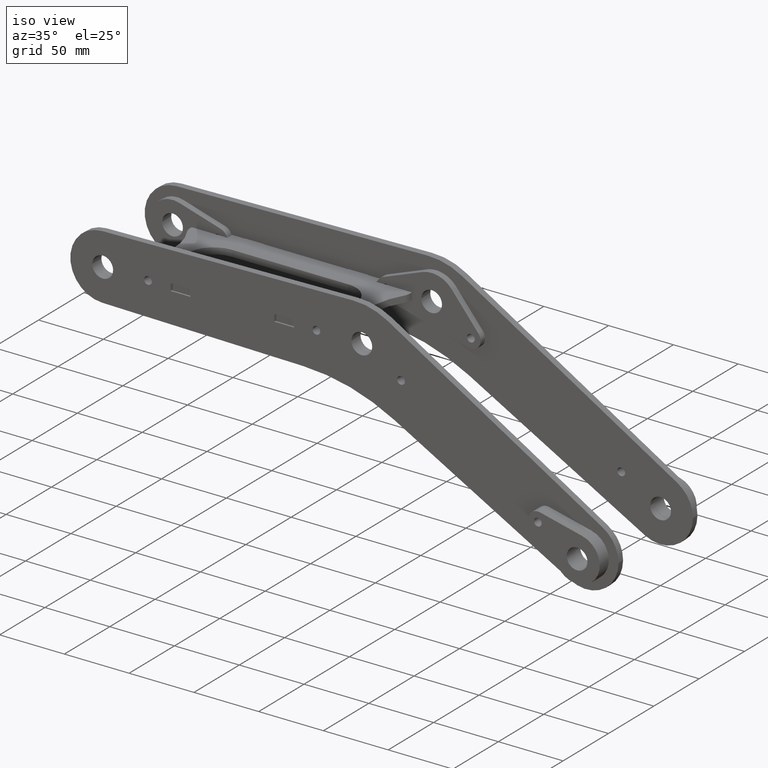
[diagram: clean part render]
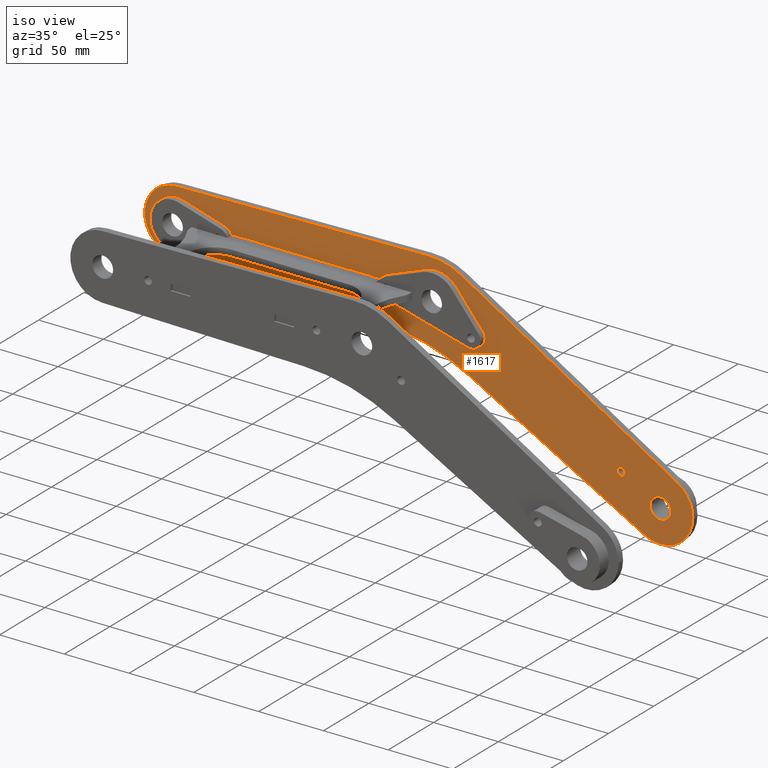
[diagram: same view with one face highlighted and labeled with its STEP entity id]
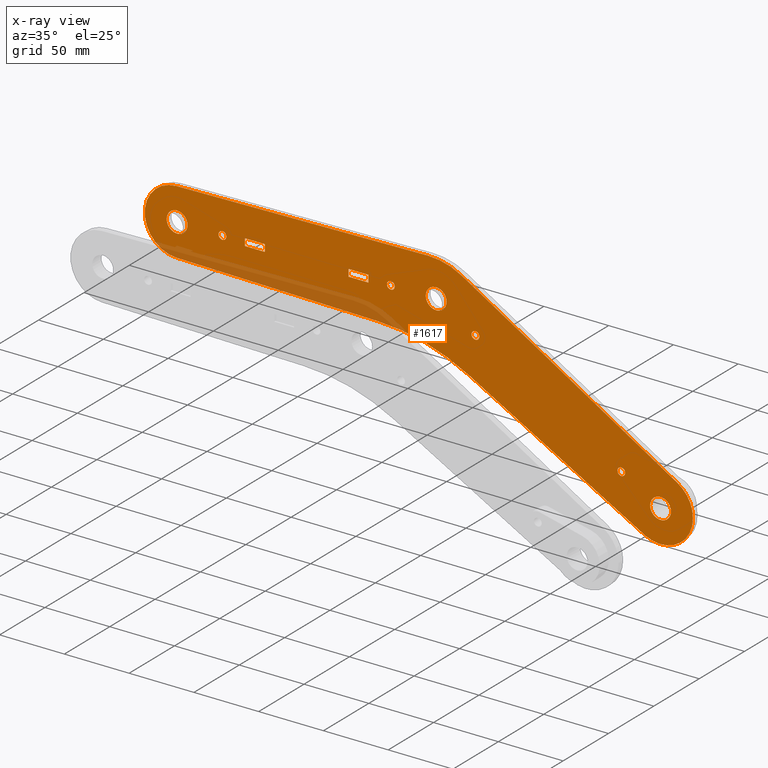
[diagram: x-ray of the same camera — body ghosted, the highlighted face saturated]
A machine part, iso view. The second image highlights one B-rep face of the part: STEP entity #1617.
The next image is the same camera in x-ray: the body ghosted, the highlighted face saturated — about 8% of this face is hidden behind the body in this view.
In plain terms, the highlighted planar face has unit normal (0, -1, 0).
Its self-contained STEP definition (entity closure, byte-faithful):
#1 = DIRECTION ( 'NONE',  ( 0.000000000000000000, 0.000000000000000000, 1.000000000000000000 ) ) ;
#11 = DIRECTION ( 'NONE',  ( 1.000000000000000000, 0.000000000000000000, 0.000000000000000000 ) ) ;
#35 = CIRCLE ( 'NONE', #877, 8.050000000000000711 ) ;
#48 = DIRECTION ( 'NONE',  ( 1.110223024625156540E-16, -1.000000000000000000, -0.000000000000000000 ) ) ;
#53 = EDGE_CURVE ( 'NONE', #1049, #2383, #317, .T. ) ;
#54 = VERTEX_POINT ( 'NONE', #751 ) ;
#102 = DIRECTION ( 'NONE',  ( 0.000000000000000000, 0.000000000000000000, 1.000000000000000000 ) ) ;
#103 = CIRCLE ( 'NONE', #2588, 3.000000000000002665 ) ;
#117 = EDGE_CURVE ( 'NONE', #894, #213, #4061, .T. ) ;
#143 = EDGE_CURVE ( 'NONE', #1189, #1427, #595, .T. ) ;
#151 = EDGE_CURVE ( 'NONE', #449, #4328, #2662, .T. ) ;
#160 = ORIENTED_EDGE ( 'NONE', *, *, #3785, .T. ) ;
#161 = CARTESIAN_POINT ( 'NONE',  ( -67.70000000000001705, -2.699999999999973088, 0.000000000000000000 ) ) ;
#211 = VERTEX_POINT ( 'NONE', #2840 ) ;
#213 = VERTEX_POINT ( 'NONE', #3483 ) ;
#214 = CARTESIAN_POINT ( 'NONE',  ( 8.050000000000000711, 0.000000000000000000, 0.000000000000000000 ) ) ;
#218 = CARTESIAN_POINT ( 'NONE',  ( 27.31088913245535110, -17.50000000000000000, 0.000000000000000000 ) ) ;
#240 = DIRECTION ( 'NONE',  ( -0.000000000000000000, -0.000000000000000000, -1.000000000000000000 ) ) ;
#249 = ORIENTED_EDGE ( 'NONE', *, *, #4070, .F. ) ;
#252 = ORIENTED_EDGE ( 'NONE', *, *, #955, .F. ) ;
#290 = ORIENTED_EDGE ( 'NONE', *, *, #606, .F. ) ;
#302 = DIRECTION ( 'NONE',  ( 0.000000000000000000, 0.000000000000000000, 1.000000000000000000 ) ) ;
#305 = DIRECTION ( 'NONE',  ( 0.000000000000000000, 0.000000000000000000, 1.000000000000000000 ) ) ;
#310 = CARTESIAN_POINT ( 'NONE',  ( -162.0000000000000000, 0.000000000000000000, 0.000000000000000000 ) ) ;
#311 = FACE_BOUND ( 'NONE', #4123, .T. ) ;
#317 = CIRCLE ( 'NONE', #2384, 3.000000000000002665 ) ;
#325 = LINE ( 'NONE', #3760, #1659 ) ;
#338 = DIRECTION ( 'NONE',  ( 0.000000000000000000, 0.000000000000000000, 1.000000000000000000 ) ) ;
#368 = EDGE_CURVE ( 'NONE', #4129, #421, #4327, .T. ) ;
#375 = CIRCLE ( 'NONE', #2932, 24.99999999999999289 ) ;
#421 = VERTEX_POINT ( 'NONE', #3299 ) ;
#449 = VERTEX_POINT ( 'NONE', #1527 ) ;
#457 = LINE ( 'NONE', #3888, #1303 ) ;
#487 = CARTESIAN_POINT ( 'NONE',  ( 186.0810326296388553, -78.57081748244732466, 0.000000000000000000 ) ) ;
#491 = VERTEX_POINT ( 'NONE', #214 ) ;
#497 = ORIENTED_EDGE ( 'NONE', *, *, #1237, .T. ) ;
#513 = CIRCLE ( 'NONE', #3502, 49.99999999999998579 ) ;
#595 = CIRCLE ( 'NONE', #4157, 8.050000000000000711 ) ;
#606 = EDGE_CURVE ( 'NONE', #4328, #449, #4232, .T. ) ;
#621 = DIRECTION ( 'NONE',  ( 1.000000000000000000, 0.000000000000000000, 0.000000000000000000 ) ) ;
#636 = LINE ( 'NONE', #3713, #2873 ) ;
#660 = CIRCLE ( 'NONE', #3855, 8.050000000000000711 ) ;
#668 = EDGE_CURVE ( 'NONE', #3238, #2676, #2439, .T. ) ;
#686 = DIRECTION ( 'NONE',  ( 1.000000000000000000, 0.000000000000000000, 0.000000000000000000 ) ) ;
#692 = CARTESIAN_POINT ( 'NONE',  ( 0.000000000000000000, 0.000000000000000000, 0.000000000000000000 ) ) ;
#714 = FACE_BOUND ( 'NONE', #2685, .T. ) ;
#751 = CARTESIAN_POINT ( 'NONE',  ( -67.70000000000001705, 2.700000000000026823, 0.000000000000000000 ) ) ;
#761 = EDGE_LOOP ( 'NONE', ( #2300, #3705 ) ) ;
#789 = CARTESIAN_POINT ( 'NONE',  ( 30.31088913245535110, -17.50000000000000000, 0.000000000000000000 ) ) ;
#792 = ORIENTED_EDGE ( 'NONE', *, *, #1865, .F. ) ;
#807 = CIRCLE ( 'NONE', #3580, 24.99999999999999289 ) ;
#815 = EDGE_CURVE ( 'NONE', #2383, #1049, #2997, .T. ) ;
#823 = EDGE_CURVE ( 'NONE', #2192, #3883, #3142, .T. ) ;
#832 = CARTESIAN_POINT ( 'NONE',  ( 173.2050807568876110, -100.0000000000001990, 0.000000000000000000 ) ) ;
#859 = DIRECTION ( 'NONE',  ( 0.000000000000000000, 0.000000000000000000, 1.000000000000000000 ) ) ;
#877 = AXIS2_PLACEMENT_3D ( 'NONE', #3970, #3909, #4289 ) ;
#894 = VERTEX_POINT ( 'NONE', #161 ) ;
#916 = EDGE_CURVE ( 'NONE', #2366, #1174, #2365, .T. ) ;
#955 = EDGE_CURVE ( 'NONE', #3715, #3906, #3569, .T. ) ;
#962 = CARTESIAN_POINT ( 'NONE',  ( -200.4363101609320950, -24.99619237890977530, 0.000000000000000000 ) ) ;
#965 = LINE ( 'NONE', #3302, #3862 ) ;
#982 = CARTESIAN_POINT ( 'NONE',  ( 173.2050807568876110, -100.0000000000001990, 0.000000000000000000 ) ) ;
#1009 = VERTEX_POINT ( 'NONE', #962 ) ;
#1014 = CARTESIAN_POINT ( 'NONE',  ( 198.2050807568876110, -100.0000000000001990, 0.000000000000000000 ) ) ;
#1015 = DIRECTION ( 'NONE',  ( 1.000000000000000000, 1.110223024625156540E-16, 0.000000000000000000 ) ) ;
#1049 = VERTEX_POINT ( 'NONE', #4013 ) ;
#1054 = ORIENTED_EDGE ( 'NONE', *, *, #143, .F. ) ;
#1107 = CARTESIAN_POINT ( 'NONE',  ( -165.0000000000000000, 0.000000000000000000, 0.000000000000000000 ) ) ;
#1116 = ORIENTED_EDGE ( 'NONE', *, *, #3725, .F. ) ;
#1137 = EDGE_CURVE ( 'NONE', #1427, #1189, #660, .T. ) ;
#1150 = EDGE_LOOP ( 'NONE', ( #497, #2279, #2867, #1852, #2077, #160, #3114, #1608, #3961 ) ) ;
#1171 = ORIENTED_EDGE ( 'NONE', *, *, #3032, .F. ) ;
#1174 = VERTEX_POINT ( 'NONE', #3030 ) ;
#1189 = VERTEX_POINT ( 'NONE', #3730 ) ;
#1207 = DIRECTION ( 'NONE',  ( 0.000000000000000000, 0.000000000000000000, 1.000000000000000000 ) ) ;
#1232 = DIRECTION ( 'NONE',  ( 1.000000000000000000, 0.000000000000000000, 0.000000000000000000 ) ) ;
#1237 = EDGE_CURVE ( 'NONE', #4041, #3238, #513, .T. ) ;
#1271 = CIRCLE ( 'NONE', #3976, 150.0000000000000000 ) ;
#1274 = DIRECTION ( 'NONE',  ( 0.000000000000000000, 0.000000000000000000, 1.000000000000000000 ) ) ;
#1283 = CARTESIAN_POINT ( 'NONE',  ( -5.791422998877997941, -21.61388487992635632, 0.000000000000000000 ) ) ;
#1293 = DIRECTION ( 'NONE',  ( -1.000000000000000000, -1.110223024625156540E-16, 0.000000000000000000 ) ) ;
#1297 = DIRECTION ( 'NONE',  ( 1.000000000000000000, 1.110223024625156540E-16, 0.000000000000000000 ) ) ;
#1298 = VERTEX_POINT ( 'NONE', #487 ) ;
#1303 = VECTOR ( 'NONE', #3847, 1000.000000000000000 ) ;
#1333 = DIRECTION ( 'NONE',  ( 0.000000000000000000, 0.000000000000000000, 1.000000000000000000 ) ) ;
#1374 = FACE_BOUND ( 'NONE', #2746, .T. ) ;
#1393 = CARTESIAN_POINT ( 'NONE',  ( -200.4363101609320950, 24.99619237890977530, 0.000000000000000000 ) ) ;
#1413 = VECTOR ( 'NONE', #3064, 1000.000000000000114 ) ;
#1427 = VERTEX_POINT ( 'NONE', #1448 ) ;
#1448 = CARTESIAN_POINT ( 'NONE',  ( 181.2550807568876223, -100.0000000000001990, 0.000000000000000000 ) ) ;
#1464 = LINE ( 'NONE', #4181, #3505 ) ;
#1527 = CARTESIAN_POINT ( 'NONE',  ( -191.9500000000000171, 0.000000000000000000, 0.000000000000000000 ) ) ;
#1594 = DIRECTION ( 'NONE',  ( -1.000000000000000000, 0.000000000000000000, 0.000000000000000000 ) ) ;
#1608 = ORIENTED_EDGE ( 'NONE', *, *, #3990, .T. ) ;
#1613 = CARTESIAN_POINT ( 'NONE',  ( -200.4363101609320950, 24.99619237890977530, 0.000000000000000000 ) ) ;
#1617 = ADVANCED_FACE ( 'NONE', ( #4072, #1669, #3674, #1999, #714, #2024, #1374, #3382, #311, #2713 ), #2738, .T. ) ;
#1634 = DIRECTION ( 'NONE',  ( 0.9998476951563911586, -0.01745240643728373023, 0.000000000000000000 ) ) ;
#1638 = DIRECTION ( 'NONE',  ( -0.9998476951563911586, -0.01745240643728353941, -0.000000000000000000 ) ) ;
#1645 = EDGE_CURVE ( 'NONE', #491, #3452, #3573, .T. ) ;
#1652 = DIRECTION ( 'NONE',  ( 1.000000000000000000, 0.000000000000000000, 0.000000000000000000 ) ) ;
#1659 = VECTOR ( 'NONE', #4110, 1000.000000000000000 ) ;
#1661 = DIRECTION ( 'NONE',  ( 1.000000000000000000, 0.000000000000000000, 0.000000000000000000 ) ) ;
#1662 = DIRECTION ( 'NONE',  ( 1.000000000000000000, 0.000000000000000000, 0.000000000000000000 ) ) ;
#1669 = FACE_BOUND ( 'NONE', #2040, .T. ) ;
#1723 = ORIENTED_EDGE ( 'NONE', *, *, #2785, .F. ) ;
#1727 = CARTESIAN_POINT ( 'NONE',  ( -208.0500000000000114, 9.858406733136212164E-16, 0.000000000000000000 ) ) ;
#1733 = DIRECTION ( 'NONE',  ( 1.000000000000000000, 0.000000000000000000, 0.000000000000000000 ) ) ;
#1768 = VECTOR ( 'NONE', #2430, 1000.000000000000227 ) ;
#1790 = DIRECTION ( 'NONE',  ( 1.000000000000000000, 0.000000000000000000, 0.000000000000000000 ) ) ;
#1805 = ORIENTED_EDGE ( 'NONE', *, *, #368, .F. ) ;
#1818 = ORIENTED_EDGE ( 'NONE', *, *, #2946, .F. ) ;
#1852 = ORIENTED_EDGE ( 'NONE', *, *, #3367, .T. ) ;
#1860 = AXIS2_PLACEMENT_3D ( 'NONE', #3779, #1995, #3974 ) ;
#1865 = EDGE_CURVE ( 'NONE', #54, #894, #1464, .T. ) ;
#1886 = DIRECTION ( 'NONE',  ( -1.110223024625156540E-16, 1.000000000000000000, 0.000000000000000000 ) ) ;
#1901 = DIRECTION ( 'NONE',  ( 1.000000000000000000, 0.000000000000000000, 0.000000000000000000 ) ) ;
#1903 = CARTESIAN_POINT ( 'NONE',  ( -52.30000000000001847, -2.699999999999971312, 0.000000000000000000 ) ) ;
#1948 = ORIENTED_EDGE ( 'NONE', *, *, #3532, .F. ) ;
#1995 = DIRECTION ( 'NONE',  ( 0.000000000000000000, 0.000000000000000000, 1.000000000000000000 ) ) ;
#1999 = FACE_BOUND ( 'NONE', #2286, .T. ) ;
#2018 = CARTESIAN_POINT ( 'NONE',  ( -200.0000000000000000, 0.000000000000000000, 0.000000000000000000 ) ) ;
#2024 = FACE_BOUND ( 'NONE', #4290, .T. ) ;
#2040 = EDGE_LOOP ( 'NONE', ( #1171, #2433 ) ) ;
#2058 = CARTESIAN_POINT ( 'NONE',  ( -132.3000000000000398, -2.699999999999980194, 6.938893903907228378E-15 ) ) ;
#2060 = DIRECTION ( 'NONE',  ( 0.000000000000000000, 0.000000000000000000, 1.000000000000000000 ) ) ;
#2063 = ORIENTED_EDGE ( 'NONE', *, *, #1137, .F. ) ;
#2077 = ORIENTED_EDGE ( 'NONE', *, *, #4158, .T. ) ;
#2080 = CARTESIAN_POINT ( 'NONE',  ( -8.050000000000000711, 9.858406733136194415E-16, 0.000000000000000000 ) ) ;
#2108 = EDGE_LOOP ( 'NONE', ( #1948, #4178 ) ) ;
#2128 = CIRCLE ( 'NONE', #3191, 3.000000000000002665 ) ;
#2146 = EDGE_CURVE ( 'NONE', #2676, #1009, #807, .T. ) ;
#2150 = AXIS2_PLACEMENT_3D ( 'NONE', #2501, #2215, #3859 ) ;
#2173 = EDGE_CURVE ( 'NONE', #3089, #4129, #325, .T. ) ;
#2192 = VERTEX_POINT ( 'NONE', #3422 ) ;
#2211 = CARTESIAN_POINT ( 'NONE',  ( 30.31088913245535110, -17.50000000000000000, 0.000000000000000000 ) ) ;
#2215 = DIRECTION ( 'NONE',  ( 0.000000000000000000, 0.000000000000000000, 1.000000000000000000 ) ) ;
#2218 = CARTESIAN_POINT ( 'NONE',  ( 25.11045735940951218, -46.49366147612066413, 0.000000000000000000 ) ) ;
#2220 = AXIS2_PLACEMENT_3D ( 'NONE', #3352, #302, #1661 ) ;
#2225 = AXIS2_PLACEMENT_3D ( 'NONE', #692, #3701, #621 ) ;
#2279 = ORIENTED_EDGE ( 'NONE', *, *, #668, .T. ) ;
#2286 = EDGE_LOOP ( 'NONE', ( #252, #1116 ) ) ;
#2300 = ORIENTED_EDGE ( 'NONE', *, *, #815, .F. ) ;
#2313 = AXIS2_PLACEMENT_3D ( 'NONE', #2552, #859, #1901 ) ;
#2316 = CARTESIAN_POINT ( 'NONE',  ( -47.61098567754208233, -177.6866175470294422, 0.000000000000000000 ) ) ;
#2339 = DIRECTION ( 'NONE',  ( 1.000000000000000000, 0.000000000000000000, -0.000000000000000000 ) ) ;
#2343 = AXIS2_PLACEMENT_3D ( 'NONE', #3789, #1, #1733 ) ;
#2351 = ORIENTED_EDGE ( 'NONE', *, *, #1645, .F. ) ;
#2365 = CIRCLE ( 'NONE', #2645, 3.000000000000002665 ) ;
#2366 = VERTEX_POINT ( 'NONE', #218 ) ;
#2383 = VERTEX_POINT ( 'NONE', #310 ) ;
#2384 = AXIS2_PLACEMENT_3D ( 'NONE', #1107, #2060, #686 ) ;
#2430 = DIRECTION ( 'NONE',  ( 0.8746197071393919664, -0.4848096202463438309, -0.000000000000000000 ) ) ;
#2433 = ORIENTED_EDGE ( 'NONE', *, *, #823, .F. ) ;
#2437 = VECTOR ( 'NONE', #1638, 1000.000000000000114 ) ;
#2439 = LINE ( 'NONE', #1613, #2437 ) ;
#2448 = CARTESIAN_POINT ( 'NONE',  ( -147.7000000000000171, -2.699999999999981970, 6.938893903907228378E-15 ) ) ;
#2451 = AXIS2_PLACEMENT_3D ( 'NONE', #2543, #1207, #3171 ) ;
#2461 = DIRECTION ( 'NONE',  ( 0.000000000000000000, 0.000000000000000000, 1.000000000000000000 ) ) ;
#2496 = VERTEX_POINT ( 'NONE', #4003 ) ;
#2501 = CARTESIAN_POINT ( 'NONE',  ( 142.8941916244323806, -82.50000000000000000, 0.000000000000000000 ) ) ;
#2522 = ORIENTED_EDGE ( 'NONE', *, *, #117, .F. ) ;
#2525 = DIRECTION ( 'NONE',  ( 1.000000000000000000, 0.000000000000000000, 0.000000000000000000 ) ) ;
#2543 = CARTESIAN_POINT ( 'NONE',  ( -200.0000000000000000, 0.000000000000000000, 0.000000000000000000 ) ) ;
#2552 = CARTESIAN_POINT ( 'NONE',  ( -200.0000000000000000, 0.000000000000000000, 0.000000000000000000 ) ) ;
#2586 = VERTEX_POINT ( 'NONE', #2448 ) ;
#2588 = AXIS2_PLACEMENT_3D ( 'NONE', #4332, #1274, #1232 ) ;
#2645 = AXIS2_PLACEMENT_3D ( 'NONE', #789, #2461, #2525 ) ;
#2662 = CIRCLE ( 'NONE', #2451, 8.050000000000000711 ) ;
#2676 = VERTEX_POINT ( 'NONE', #1393 ) ;
#2685 = EDGE_LOOP ( 'NONE', ( #2063, #1054 ) ) ;
#2713 = FACE_BOUND ( 'NONE', #3109, .T. ) ;
#2715 = LINE ( 'NONE', #4074, #1768 ) ;
#2738 = PLANE ( 'NONE',  #3995 ) ;
#2746 = EDGE_LOOP ( 'NONE', ( #3832, #290 ) ) ;
#2749 = CARTESIAN_POINT ( 'NONE',  ( -67.70000000000001705, -2.699999999999973088, 0.000000000000000000 ) ) ;
#2785 = EDGE_CURVE ( 'NONE', #2496, #54, #457, .T. ) ;
#2840 = CARTESIAN_POINT ( 'NONE',  ( -44.99312471194955521, -27.70946327357076555, 0.000000000000000000 ) ) ;
#2867 = ORIENTED_EDGE ( 'NONE', *, *, #2146, .T. ) ;
#2873 = VECTOR ( 'NONE', #1297, 1000.000000000000000 ) ;
#2932 = AXIS2_PLACEMENT_3D ( 'NONE', #3711, #338, #11 ) ;
#2939 = VERTEX_POINT ( 'NONE', #2218 ) ;
#2946 = EDGE_CURVE ( 'NONE', #3452, #491, #35, .T. ) ;
#2980 = VECTOR ( 'NONE', #1886, 1000.000000000000000 ) ;
#2997 = CIRCLE ( 'NONE', #1860, 3.000000000000002665 ) ;
#3030 = CARTESIAN_POINT ( 'NONE',  ( 33.31088913245535821, -17.50000000000000000, 0.000000000000000000 ) ) ;
#3032 = EDGE_CURVE ( 'NONE', #3883, #2192, #103, .T. ) ;
#3049 = CIRCLE ( 'NONE', #2343, 3.000000000000002665 ) ;
#3064 = DIRECTION ( 'NONE',  ( -0.8571673007021152202, 0.5150380749100493816, 0.000000000000000000 ) ) ;
#3089 = VERTEX_POINT ( 'NONE', #2058 ) ;
#3109 = EDGE_LOOP ( 'NONE', ( #2522, #792, #1723, #249 ) ) ;
#3114 = ORIENTED_EDGE ( 'NONE', *, *, #3334, .T. ) ;
#3118 = EDGE_CURVE ( 'NONE', #2586, #3089, #636, .T. ) ;
#3135 = CARTESIAN_POINT ( 'NONE',  ( 173.2050807568876110, -100.0000000000001990, 0.000000000000000000 ) ) ;
#3142 = CIRCLE ( 'NONE', #2220, 3.000000000000002665 ) ;
#3160 = CARTESIAN_POINT ( 'NONE',  ( -32.00000000000000000, 0.000000000000000000, 0.000000000000000000 ) ) ;
#3171 = DIRECTION ( 'NONE',  ( 1.000000000000000000, 0.000000000000000000, 0.000000000000000000 ) ) ;
#3178 = DIRECTION ( 'NONE',  ( 0.000000000000000000, 0.000000000000000000, 1.000000000000000000 ) ) ;
#3185 = VERTEX_POINT ( 'NONE', #1014 ) ;
#3189 = DIRECTION ( 'NONE',  ( 1.000000000000000000, 0.000000000000000000, 0.000000000000000000 ) ) ;
#3191 = AXIS2_PLACEMENT_3D ( 'NONE', #2211, #4254, #1790 ) ;
#3193 = AXIS2_PLACEMENT_3D ( 'NONE', #3135, #3178, #3489 ) ;
#3201 = ORIENTED_EDGE ( 'NONE', *, *, #3831, .F. ) ;
#3230 = VECTOR ( 'NONE', #1015, 1000.000000000000000 ) ;
#3238 = VERTEX_POINT ( 'NONE', #3756 ) ;
#3260 = VECTOR ( 'NONE', #3746, 1000.000000000000000 ) ;
#3293 = CARTESIAN_POINT ( 'NONE',  ( 145.8941916244323806, -82.50000000000000000, 0.000000000000000000 ) ) ;
#3299 = CARTESIAN_POINT ( 'NONE',  ( -147.7000000000000171, 2.700000000000018385, 6.938893903907228378E-15 ) ) ;
#3302 = CARTESIAN_POINT ( 'NONE',  ( -200.4363101609320950, -24.99619237890977530, 0.000000000000000000 ) ) ;
#3304 = ORIENTED_EDGE ( 'NONE', *, *, #3118, .F. ) ;
#3333 = LINE ( 'NONE', #4360, #1413 ) ;
#3334 = EDGE_CURVE ( 'NONE', #3462, #3185, #375, .T. ) ;
#3352 = CARTESIAN_POINT ( 'NONE',  ( -35.00000000000000000, 0.000000000000000000, 0.000000000000000000 ) ) ;
#3367 = EDGE_CURVE ( 'NONE', #1009, #211, #965, .T. ) ;
#3382 = FACE_OUTER_BOUND ( 'NONE', #1150, .T. ) ;
#3402 = LINE ( 'NONE', #4095, #3260 ) ;
#3409 = CARTESIAN_POINT ( 'NONE',  ( -5.791422998877997941, -21.61388487992635632, 0.000000000000000000 ) ) ;
#3422 = CARTESIAN_POINT ( 'NONE',  ( -38.00000000000000711, 3.673940397442059868E-16, 0.000000000000000000 ) ) ;
#3434 = DIRECTION ( 'NONE',  ( 1.000000000000000000, 0.000000000000000000, 0.000000000000000000 ) ) ;
#3444 = VECTOR ( 'NONE', #1293, 1000.000000000000000 ) ;
#3452 = VERTEX_POINT ( 'NONE', #2080 ) ;
#3462 = VERTEX_POINT ( 'NONE', #3800 ) ;
#3483 = CARTESIAN_POINT ( 'NONE',  ( -52.30000000000001847, -2.699999999999971312, 0.000000000000000000 ) ) ;
#3489 = DIRECTION ( 'NONE',  ( 1.000000000000000000, 0.000000000000000000, 0.000000000000000000 ) ) ;
#3502 = AXIS2_PLACEMENT_3D ( 'NONE', #3409, #1333, #1652 ) ;
#3505 = VECTOR ( 'NONE', #48, 1000.000000000000000 ) ;
#3532 = EDGE_CURVE ( 'NONE', #1174, #2366, #2128, .T. ) ;
#3569 = CIRCLE ( 'NONE', #2150, 3.000000000000002665 ) ;
#3573 = CIRCLE ( 'NONE', #2225, 8.050000000000000711 ) ;
#3580 = AXIS2_PLACEMENT_3D ( 'NONE', #2018, #305, #1662 ) ;
#3592 = CARTESIAN_POINT ( 'NONE',  ( -132.3000000000000398, 2.700000000000020162, 6.938893903907228378E-15 ) ) ;
#3674 = FACE_BOUND ( 'NONE', #2108, .T. ) ;
#3701 = DIRECTION ( 'NONE',  ( 0.000000000000000000, 0.000000000000000000, 1.000000000000000000 ) ) ;
#3705 = ORIENTED_EDGE ( 'NONE', *, *, #53, .F. ) ;
#3711 = CARTESIAN_POINT ( 'NONE',  ( 173.2050807568876110, -100.0000000000001990, 0.000000000000000000 ) ) ;
#3713 = CARTESIAN_POINT ( 'NONE',  ( -147.7000000000000171, -2.699999999999981970, 6.938893903907228378E-15 ) ) ;
#3715 = VERTEX_POINT ( 'NONE', #3293 ) ;
#3725 = EDGE_CURVE ( 'NONE', #3906, #3715, #3049, .T. ) ;
#3730 = CARTESIAN_POINT ( 'NONE',  ( 165.1550807568876280, -100.0000000000001990, 0.000000000000000000 ) ) ;
#3746 = DIRECTION ( 'NONE',  ( 1.110223024625156540E-16, -1.000000000000000000, -0.000000000000000000 ) ) ;
#3756 = CARTESIAN_POINT ( 'NONE',  ( -6.664043320742175425, 28.37849987789320139, 0.000000000000000000 ) ) ;
#3760 = CARTESIAN_POINT ( 'NONE',  ( -132.3000000000000398, -2.699999999999980194, 6.938893903907228378E-15 ) ) ;
#3779 = CARTESIAN_POINT ( 'NONE',  ( -165.0000000000000000, 0.000000000000000000, 0.000000000000000000 ) ) ;
#3785 = EDGE_CURVE ( 'NONE', #2939, #3462, #2715, .T. ) ;
#3789 = CARTESIAN_POINT ( 'NONE',  ( 142.8941916244323806, -82.50000000000000000, 0.000000000000000000 ) ) ;
#3800 = CARTESIAN_POINT ( 'NONE',  ( 161.0848402507290302, -121.8654926784849835, 0.000000000000000000 ) ) ;
#3831 = EDGE_CURVE ( 'NONE', #421, #2586, #3402, .T. ) ;
#3832 = ORIENTED_EDGE ( 'NONE', *, *, #151, .F. ) ;
#3847 = DIRECTION ( 'NONE',  ( -1.000000000000000000, -1.110223024625156540E-16, 0.000000000000000000 ) ) ;
#3855 = AXIS2_PLACEMENT_3D ( 'NONE', #982, #4373, #3434 ) ;
#3859 = DIRECTION ( 'NONE',  ( 1.000000000000000000, 0.000000000000000000, 0.000000000000000000 ) ) ;
#3862 = VECTOR ( 'NONE', #1634, 1000.000000000000114 ) ;
#3872 = CARTESIAN_POINT ( 'NONE',  ( 139.8941916244323806, -82.50000000000000000, 0.000000000000000000 ) ) ;
#3883 = VERTEX_POINT ( 'NONE', #3160 ) ;
#3888 = CARTESIAN_POINT ( 'NONE',  ( -52.30000000000001847, 2.700000000000028599, 0.000000000000000000 ) ) ;
#3906 = VERTEX_POINT ( 'NONE', #3872 ) ;
#3909 = DIRECTION ( 'NONE',  ( 0.000000000000000000, 0.000000000000000000, 1.000000000000000000 ) ) ;
#3913 = LINE ( 'NONE', #1903, #2980 ) ;
#3961 = ORIENTED_EDGE ( 'NONE', *, *, #4263, .T. ) ;
#3970 = CARTESIAN_POINT ( 'NONE',  ( 0.000000000000000000, 0.000000000000000000, 0.000000000000000000 ) ) ;
#3974 = DIRECTION ( 'NONE',  ( 1.000000000000000000, 0.000000000000000000, 0.000000000000000000 ) ) ;
#3976 = AXIS2_PLACEMENT_3D ( 'NONE', #2316, #240, #1594 ) ;
#3978 = CARTESIAN_POINT ( 'NONE',  ( -132.3000000000000398, 2.700000000000018385, 0.000000000000000000 ) ) ;
#3989 = ORIENTED_EDGE ( 'NONE', *, *, #2173, .F. ) ;
#3990 = EDGE_CURVE ( 'NONE', #3185, #1298, #4337, .T. ) ;
#3995 = AXIS2_PLACEMENT_3D ( 'NONE', #1283, #4004, #2339 ) ;
#4003 = CARTESIAN_POINT ( 'NONE',  ( -52.30000000000001847, 2.700000000000026823, 0.000000000000000000 ) ) ;
#4004 = DIRECTION ( 'NONE',  ( 0.000000000000000000, 0.000000000000000000, 1.000000000000000000 ) ) ;
#4013 = CARTESIAN_POINT ( 'NONE',  ( -168.0000000000000000, 3.673940397442044091E-16, 0.000000000000000000 ) ) ;
#4041 = VERTEX_POINT ( 'NONE', #4339 ) ;
#4061 = LINE ( 'NONE', #2749, #3230 ) ;
#4070 = EDGE_CURVE ( 'NONE', #213, #2496, #3913, .T. ) ;
#4072 = FACE_BOUND ( 'NONE', #761, .T. ) ;
#4074 = CARTESIAN_POINT ( 'NONE',  ( 161.0848402507290302, -121.8654926784849835, 0.000000000000000000 ) ) ;
#4095 = CARTESIAN_POINT ( 'NONE',  ( -147.7000000000000171, 2.700000000000018385, 6.938893903907228378E-15 ) ) ;
#4110 = DIRECTION ( 'NONE',  ( -1.110223024625156540E-16, 1.000000000000000000, 0.000000000000000000 ) ) ;
#4123 = EDGE_LOOP ( 'NONE', ( #3304, #3201, #1805, #3989 ) ) ;
#4129 = VERTEX_POINT ( 'NONE', #3978 ) ;
#4157 = AXIS2_PLACEMENT_3D ( 'NONE', #832, #102, #3189 ) ;
#4158 = EDGE_CURVE ( 'NONE', #211, #2939, #1271, .T. ) ;
#4178 = ORIENTED_EDGE ( 'NONE', *, *, #916, .F. ) ;
#4181 = CARTESIAN_POINT ( 'NONE',  ( -67.70000000000001705, 2.700000000000026823, 0.000000000000000000 ) ) ;
#4232 = CIRCLE ( 'NONE', #2313, 8.050000000000000711 ) ;
#4254 = DIRECTION ( 'NONE',  ( 0.000000000000000000, 0.000000000000000000, 1.000000000000000000 ) ) ;
#4263 = EDGE_CURVE ( 'NONE', #1298, #4041, #3333, .T. ) ;
#4289 = DIRECTION ( 'NONE',  ( 1.000000000000000000, 0.000000000000000000, 0.000000000000000000 ) ) ;
#4290 = EDGE_LOOP ( 'NONE', ( #2351, #1818 ) ) ;
#4327 = LINE ( 'NONE', #3592, #3444 ) ;
#4328 = VERTEX_POINT ( 'NONE', #1727 ) ;
#4332 = CARTESIAN_POINT ( 'NONE',  ( -35.00000000000000000, 0.000000000000000000, 0.000000000000000000 ) ) ;
#4337 = CIRCLE ( 'NONE', #3193, 24.99999999999999289 ) ;
#4339 = CARTESIAN_POINT ( 'NONE',  ( 19.96048074662445160, 21.24448015517938160, 0.000000000000000000 ) ) ;
#4360 = CARTESIAN_POINT ( 'NONE',  ( 186.0810326296388553, -78.57081748244732466, 0.000000000000000000 ) ) ;
#4373 = DIRECTION ( 'NONE',  ( 0.000000000000000000, 0.000000000000000000, 1.000000000000000000 ) ) ;